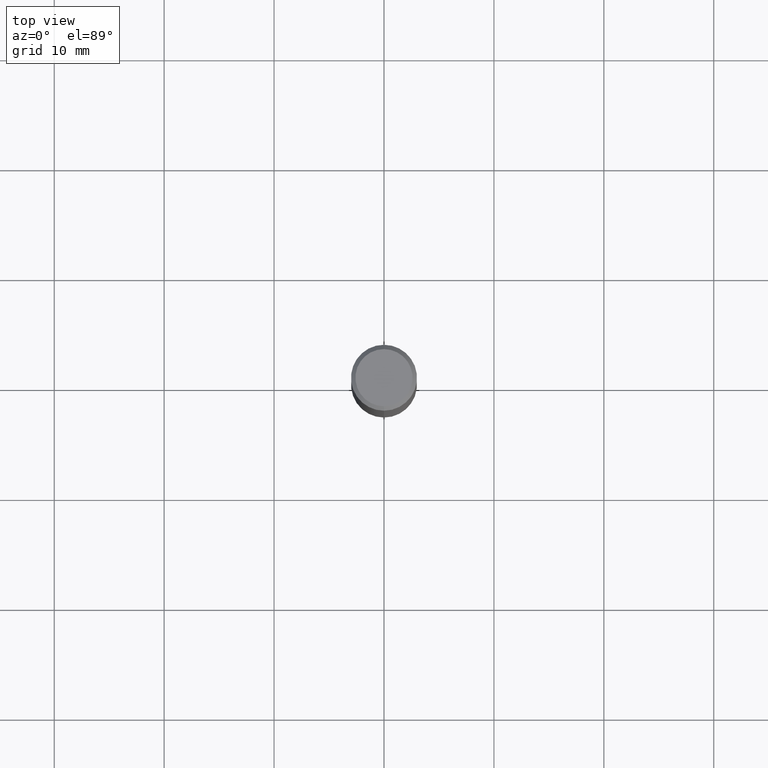
[diagram: clean part render]
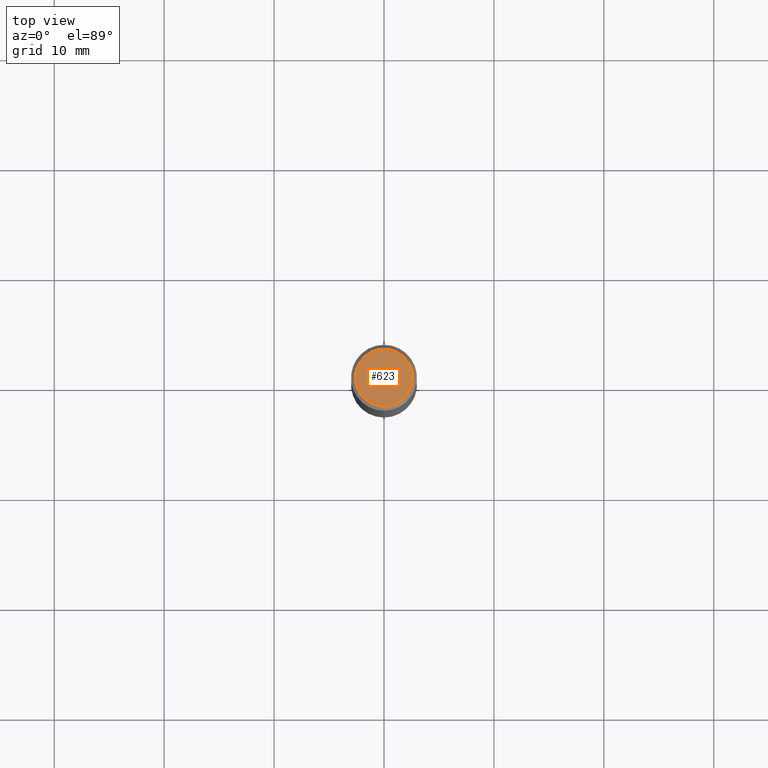
[diagram: same view with one face highlighted and labeled with its STEP entity id]
A machine part, top view. The second image highlights one B-rep face of the part: STEP entity #623.
In plain terms, the highlighted planar face has unit normal (-0, 0, 1).
Its self-contained STEP definition (entity closure, byte-faithful):
#277=VERTEX_POINT('',#769);
#419=EDGE_CURVE('',#277,#517,#925,.T.);
#503=EDGE_CURVE('',#517,#277,#1017,.T.);
#517=VERTEX_POINT('',#1032);
#623=ADVANCED_FACE('',(#1150),#1151,.T.);
#769=CARTESIAN_POINT('',(3.18397651993818E-016,-2.6,0.0));
#925=CIRCLE('',#2437,2.6);
#1017=CIRCLE('',#2851,2.6);
#1032=CARTESIAN_POINT('',(0.0,2.6,0.0));
#1150=FACE_OUTER_BOUND('',#3889,.T.);
#1151=PLANE('',#3890);
#2437=AXIS2_PLACEMENT_3D('',#5357,#5358,#5359);
#2851=AXIS2_PLACEMENT_3D('',#5478,#5479,#5480);
#3889=EDGE_LOOP('',(#5655,#5656));
#3890=AXIS2_PLACEMENT_3D('',#5657,#5658,#5659);
#5357=CARTESIAN_POINT('',(0.0,0.0,0.0));
#5358=DIRECTION('',(0.0,0.0,-1.0));
#5359=DIRECTION('',(0.0,1.0,0.0));
#5478=CARTESIAN_POINT('',(0.0,0.0,0.0));
#5479=DIRECTION('',(0.0,0.0,-1.0));
#5480=DIRECTION('',(0.0,1.0,0.0));
#5655=ORIENTED_EDGE('',*,*,#503,.F.);
#5656=ORIENTED_EDGE('',*,*,#419,.F.);
#5657=CARTESIAN_POINT('',(0.0,1.3,0.0));
#5658=DIRECTION('',(-0.0,0.0,1.0));
#5659=DIRECTION('',(0.0,-1.0,0.0));